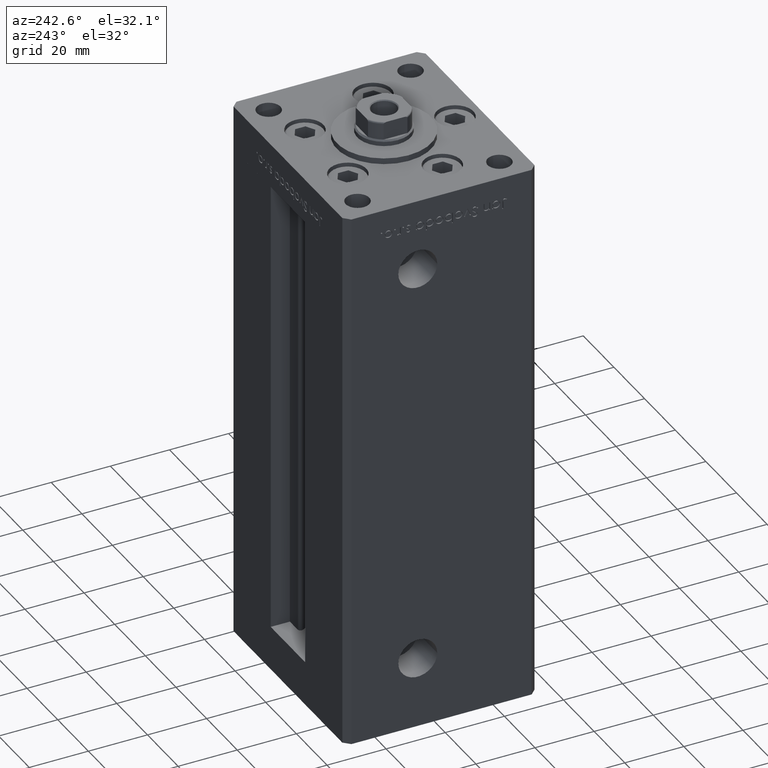
[diagram: clean part render]
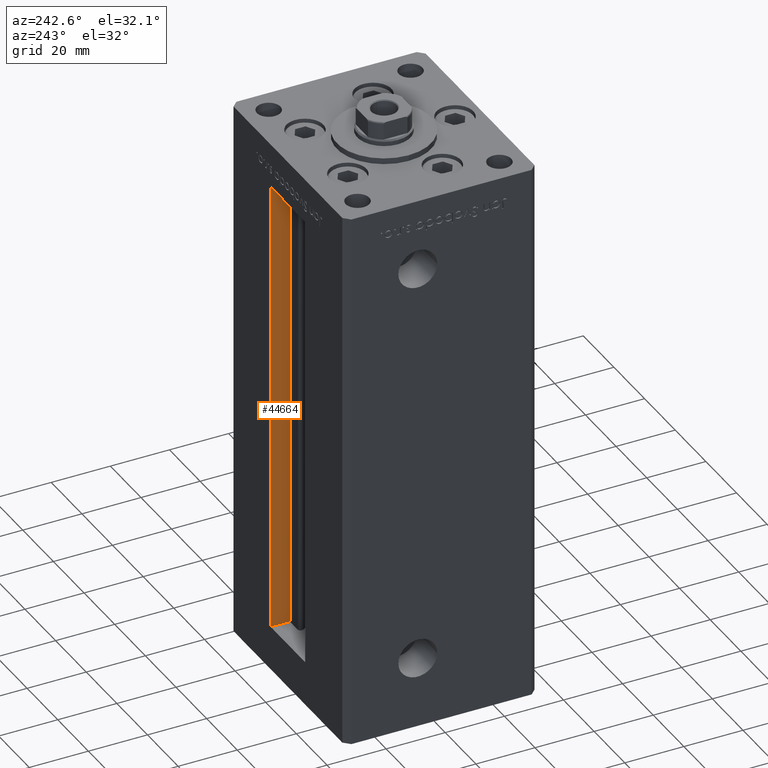
[diagram: same view with one face highlighted and labeled with its STEP entity id]
A machine part, auxiliary view. The second image highlights one B-rep face of the part: STEP entity #44664.
In plain terms, the highlighted planar face has unit normal (1, 0, 0).
Its self-contained STEP definition (entity closure, byte-faithful):
#295 = CARTESIAN_POINT ( 'NONE',  ( 11.25000000000000178, 25.99999999999999289, 0.000000000000000000 ) ) ;
#1590 = CARTESIAN_POINT ( 'NONE',  ( 11.25000000000000178, 25.99999999999999289, 0.000000000000000000 ) ) ;
#1607 = VERTEX_POINT ( 'NONE', #35810 ) ;
#2770 = VECTOR ( 'NONE', #8003, 1000.000000000000000 ) ;
#3181 = AXIS2_PLACEMENT_3D ( 'NONE', #39440, #3544, #31239 ) ;
#3544 = DIRECTION ( 'NONE',  ( 1.000000000000000000, -0.000000000000000000, 0.000000000000000000 ) ) ;
#3922 = EDGE_LOOP ( 'NONE', ( #50427, #36852, #48652, #6262 ) ) ;
#6078 = VERTEX_POINT ( 'NONE', #17730 ) ;
#6262 = ORIENTED_EDGE ( 'NONE', *, *, #34289, .F. ) ;
#6534 = DIRECTION ( 'NONE',  ( -0.000000000000000000, -0.000000000000000000, 1.000000000000000000 ) ) ;
#8003 = DIRECTION ( 'NONE',  ( 0.000000000000000000, 1.000000000000000000, 0.000000000000000000 ) ) ;
#11921 = CARTESIAN_POINT ( 'NONE',  ( 11.25000000000000178, 25.99999999999999289, 156.0000000000000000 ) ) ;
#15153 = FACE_OUTER_BOUND ( 'NONE', #3922, .T. ) ;
#16364 = DIRECTION ( 'NONE',  ( -0.000000000000000000, -0.000000000000000000, 1.000000000000000000 ) ) ;
#17730 = CARTESIAN_POINT ( 'NONE',  ( 11.24999999999999467, 32.49999999999999289, 156.0000000000000000 ) ) ;
#17764 = VERTEX_POINT ( 'NONE', #1590 ) ;
#18914 = CARTESIAN_POINT ( 'NONE',  ( 11.25000000000000178, 32.49999999999999289, 0.000000000000000000 ) ) ;
#23137 = LINE ( 'NONE', #18914, #38629 ) ;
#23763 = EDGE_CURVE ( 'NONE', #17764, #45807, #36437, .T. ) ;
#28450 = EDGE_CURVE ( 'NONE', #17764, #1607, #51550, .T. ) ;
#29926 = CARTESIAN_POINT ( 'NONE',  ( 11.25000000000000178, 0.000000000000000000, 156.0000000000000000 ) ) ;
#31239 = DIRECTION ( 'NONE',  ( 0.000000000000000000, 0.000000000000000000, -1.000000000000000000 ) ) ;
#34289 = EDGE_CURVE ( 'NONE', #6078, #45807, #45506, .T. ) ;
#34941 = CARTESIAN_POINT ( 'NONE',  ( 11.25000000000000178, 25.99999999999999289, 0.000000000000000000 ) ) ;
#35810 = CARTESIAN_POINT ( 'NONE',  ( 11.25000000000000178, 32.49999999999999289, 0.000000000000000000 ) ) ;
#36437 = LINE ( 'NONE', #295, #48157 ) ;
#36852 = ORIENTED_EDGE ( 'NONE', *, *, #28450, .F. ) ;
#38368 = DIRECTION ( 'NONE',  ( -0.000000000000000000, -1.000000000000000000, 0.000000000000000000 ) ) ;
#38629 = VECTOR ( 'NONE', #6534, 1000.000000000000000 ) ;
#39440 = CARTESIAN_POINT ( 'NONE',  ( 11.25000000000000178, 25.99999999999999289, 0.000000000000000000 ) ) ;
#44119 = VECTOR ( 'NONE', #38368, 1000.000000000000000 ) ;
#44664 = ADVANCED_FACE ( 'NONE', ( #15153 ), #50774, .F. ) ;
#45506 = LINE ( 'NONE', #29926, #44119 ) ;
#45807 = VERTEX_POINT ( 'NONE', #11921 ) ;
#46391 = EDGE_CURVE ( 'NONE', #1607, #6078, #23137, .T. ) ;
#48157 = VECTOR ( 'NONE', #16364, 1000.000000000000000 ) ;
#48652 = ORIENTED_EDGE ( 'NONE', *, *, #23763, .T. ) ;
#50427 = ORIENTED_EDGE ( 'NONE', *, *, #46391, .F. ) ;
#50774 = PLANE ( 'NONE',  #3181 ) ;
#51550 = LINE ( 'NONE', #34941, #2770 ) ;